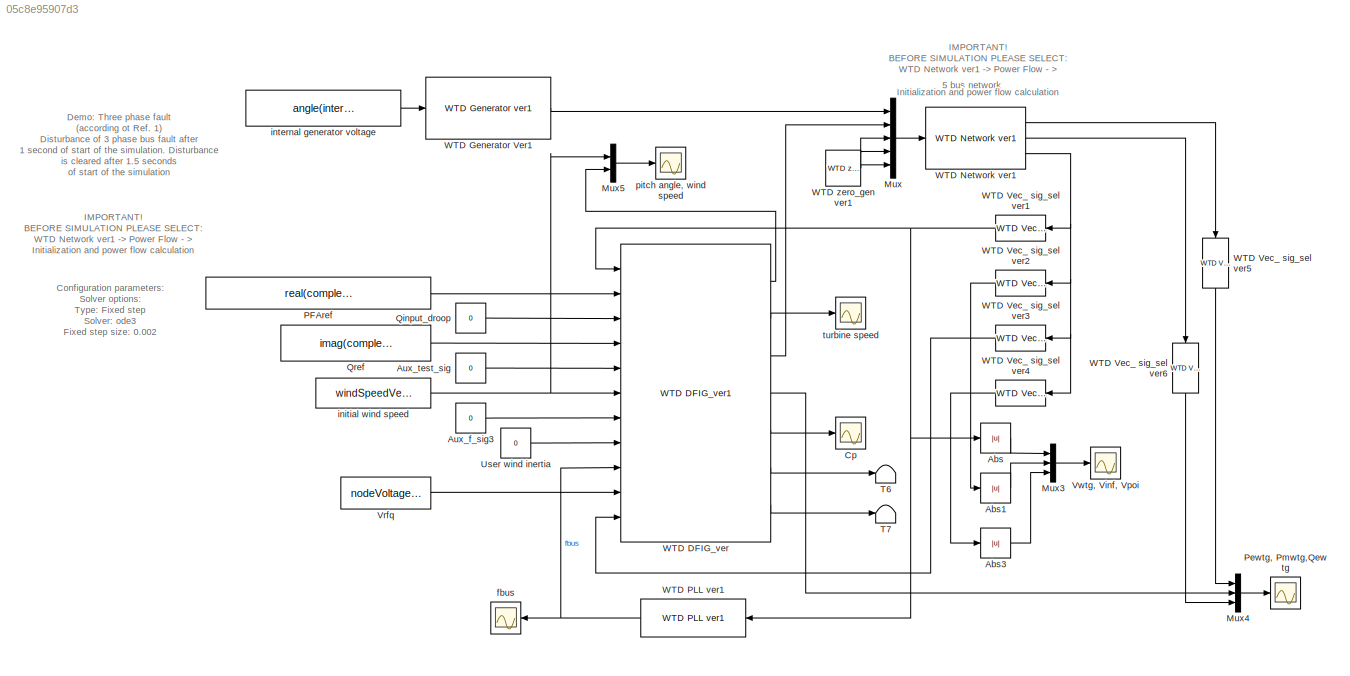
MODEL slx_05c8e95907d3
KIND model
BLOCK [Abs] Abs
  SaturateOnIntegerOverflow = off
BLOCK [Abs] Abs1
  SaturateOnIntegerOverflow = off
BLOCK [Abs] Abs3
  SaturateOnIntegerOverflow = off
BLOCK [Constant] Aux_f_sig3
  Value = 0
BLOCK [Constant] Aux_test_sig
  Value = 0
BLOCK [Scope] Cp
  DataFormat = StructureWithTime
  Floating = off
  MaxDataPoints = 500000
  NumInputPorts = 1
  Ports = [1]
  SampleTime = 0
  SaveName = ScopeData13
  ShowLegends = off
  YMax = 0.24
  YMin = 0.17
BLOCK [Mux] Mux
  DisplayOption = bar
  Inputs = 5
  Ports = [5, 1]
BLOCK [Mux] Mux3
  DisplayOption = bar
  Inputs = 3
  Ports = [3, 1]
BLOCK [Mux] Mux4
  DisplayOption = bar
  Inputs = 3
  Ports = [3, 1]
BLOCK [Mux] Mux5
  DisplayOption = bar
  Inputs = 2
  Ports = [2, 1]
BLOCK [Constant] PFAref
  Value = real(complexPower(2))/abs(complexPower(2))
BLOCK [Scope] Pewtg, Pmwtg,Qewtg
  DataFormat = StructureWithTime
  Floating = off
  MaxDataPoints = 500000
  NumInputPorts = 1
  Ports = [1]
  SampleTime = 0
  SaveName = ScopeData3
  ShowLegends = off
  YMax = 1.5
  YMin = -0.5
  ZoomMode = yonly
BLOCK [Constant] Qinput_droop
  Value = 0
BLOCK [Constant] Qref
  Value = imag(complexPower(2))
BLOCK [Terminator] T6
BLOCK [Terminator] T7
BLOCK [Constant] User wind inertia
  Value = 0
BLOCK [Constant] Vrfq
  Value = nodeVoltage(5)
BLOCK [Scope] Vwtg, Vinf, Vpoi
  DataFormat = StructureWithTime
  Floating = off
  MaxDataPoints = 50000
  NumInputPorts = 1
  Ports = [1]
  SampleTime = 0
  SaveName = ScopeData9
  ShowLegends = off
  YMax = 1.5
  YMin = 0
BLOCK [Reference] WTD DFIG_ver  REF=wtd_library_ver1/WTD DFIG_ver1  (lib defined in slx_bdb9e66360e7)
  FunctionWithSeparateData = off
  H = 4.94
  KVi = 40
  Ka = windturbKaParam
  Kb = windturbKbParam
  Kitrq = 0.6
  Kiv = 5
  Kptrq = 3
  Kpv = 18
  Kqd = 0
  Kwi = 10
  Pelec4abs = real(complexPower)*baseSystemPower
  Pmnwi = 0
  Pmxwi = 0.1
  Ports = [11, 7]
  Qgen4abs = imag(complexPower)*baseSystemPower
  Qmax = 0.436
  Qmin = -0.436
  RTWMemSecDataConstants = Inherit from model
  RTWMemSecDataInternal = Inherit from model
  RTWMemSecDataParameters = Inherit from model
  RTWMemSecFuncExecute = Inherit from model
  RTWMemSecFuncInitTerm = Inherit from model
  Sbasem4 = 100.5
  Sbasesys = baseSystemPower
  ShowPortLabels = FromPortIcon
  SourceBlock = wtd_library_ver1/WTD DFIG_ver1
  SystemSampleTime = -1
  TIpwi = 1
  Tpc = 0.05
  Twowi = 5.5
  Vwinit = nodeVoltage
  Xsecsys = genTranReactance
  apcflg = 0
  co_node = 2
  dbwi = 0.0025
  drlwi = -1
  insupp = 0
  pfaflg = 0
  theta = pitchAngleVec
  urlwi = 0.1
  varflg = 1
  w = turbSpeedVec
  wbase = 2*pi*systemFrequency
  wi_user_GE = 0
BLOCK [Reference] WTD Generator Ver1  REF=wtd_library_ver1/WTD Generator ver1  (lib defined in slx_bdb9e66360e7)
  E = internalGenVoltage
  FunctionWithSeparateData = off
  Ports = [1, 1]
  RTWMemSecDataConstants = Inherit from model
  RTWMemSecDataInternal = Inherit from model
  RTWMemSecDataParameters = Inherit from model
  RTWMemSecFuncExecute = Inherit from model
  RTWMemSecFuncInitTerm = Inherit from model
  ShowPortLabels = FromPortIcon
  SourceBlock = wtd_library_ver1/WTD Generator ver1
  SystemSampleTime = -1
  co_node = 1
  jxd = genTranReactance
BLOCK [Reference] WTD Network ver1  REF=wtd_library_ver1/WTD Network ver1  (lib defined in slx_bdb9e66360e7)
  FunctionWithSeparateData = off
  Ka = 0.00159
  Kb = 56.6
  Pbasemw = 100.5
  Ports = [1, 3]
  RTWMemSecDataConstants = Inherit from model
  RTWMemSecDataInternal = Inherit from model
  RTWMemSecDataParameters = Inherit from model
  RTWMemSecFuncExecute = Inherit from model
  RTWMemSecFuncInitTerm = Inherit from model
  Saddabs = 10
  Sbasesys = 100
  Sgenabs_co = [103,0,85]
  Sgenabs_wi = 60
  ShowPortLabels = FromPortIcon
  Sloadabs = []
  SourceBlock = wtd_library_ver1/WTD Network ver1
  SystemSampleTime = -1
  Tclear = 1.5
  Tfault = 1
  Y2df = WTD_Y5_2
  Ydf = WTD_Y5
  absV_co = 1.05
  absV_wi = 1.031
  fltimp = 0.105
  flttype = Short_circuit
  fsystem = 60
  linenumber = 1
  no_gen_co = 1
  no_gen_wi = 1
  nodeadd = 5
  nodes_co = [1]
  nodes_lo = []
  nodes_wi = 2
  pfcalc = off
  pffault = on
  vw_vector = 14
  wi_choice = Wind_speed
  xd_co = [0.01]
  xd_wi = 0.8
BLOCK [Reference] WTD PLL ver1  REF=wtd_library_ver1/WTD PLL ver1  (lib defined in slx_bdb9e66360e7)
  FunctionWithSeparateData = off
  KiPLL = 0
  KpPLL = 30
  Ports = [1, 1]
  RTWMemSecDataConstants = Inherit from model
  RTWMemSecDataInternal = Inherit from model
  RTWMemSecDataParameters = Inherit from model
  RTWMemSecFuncExecute = Inherit from model
  RTWMemSecFuncInitTerm = Inherit from model
  ShowPortLabels = FromPortIcon
  SourceBlock = wtd_library_ver1/WTD PLL ver1
  SystemSampleTime = -1
  delta_init_vec = angle(nodeVoltage )
  me_node = 2
  wbase = 2*pi*systemFrequency
BLOCK [Reference] WTD Vec_ sig_sel ver1  REF=wtd_library_ver1/WTD Vec_ sig_sel ver1  (lib defined in slx_bdb9e66360e7)
  FunctionWithSeparateData = off
  Ports = [1, 1]
  RTWMemSecDataConstants = Inherit from model
  RTWMemSecDataInternal = Inherit from model
  RTWMemSecDataParameters = Inherit from model
  RTWMemSecFuncExecute = Inherit from model
  RTWMemSecFuncInitTerm = Inherit from model
  ShowPortLabels = FromPortIcon
  SourceBlock = wtd_library_ver1/WTD Vec_ sig_sel ver1
  SystemSampleTime = -1
  node = 2
BLOCK [Reference] WTD Vec_ sig_sel ver2  REF=wtd_library_ver1/WTD Vec_ sig_sel ver1  (lib defined in slx_bdb9e66360e7)
  FunctionWithSeparateData = off
  Ports = [1, 1]
  RTWMemSecDataConstants = Inherit from model
  RTWMemSecDataInternal = Inherit from model
  RTWMemSecDataParameters = Inherit from model
  RTWMemSecFuncExecute = Inherit from model
  RTWMemSecFuncInitTerm = Inherit from model
  ShowPortLabels = FromPortIcon
  SourceBlock = wtd_library_ver1/WTD Vec_ sig_sel ver1
  SystemSampleTime = -1
  node = 1
BLOCK [Reference] WTD Vec_ sig_sel ver3  REF=wtd_library_ver1/WTD Vec_ sig_sel ver1  (lib defined in slx_bdb9e66360e7)
  FunctionWithSeparateData = off
  Ports = [1, 1]
  RTWMemSecDataConstants = Inherit from model
  RTWMemSecDataInternal = Inherit from model
  RTWMemSecDataParameters = Inherit from model
  RTWMemSecFuncExecute = Inherit from model
  RTWMemSecFuncInitTerm = Inherit from model
  ShowPortLabels = FromPortIcon
  SourceBlock = wtd_library_ver1/WTD Vec_ sig_sel ver1
  SystemSampleTime = -1
  node = 5
BLOCK [Reference] WTD Vec_ sig_sel ver4  REF=wtd_library_ver1/WTD Vec_ sig_sel ver1  (lib defined in slx_bdb9e66360e7)
  FunctionWithSeparateData = off
  Ports = [1, 1]
  RTWMemSecDataConstants = Inherit from model
  RTWMemSecDataInternal = Inherit from model
  RTWMemSecDataParameters = Inherit from model
  RTWMemSecFuncExecute = Inherit from model
  RTWMemSecFuncInitTerm = Inherit from model
  ShowPortLabels = FromPortIcon
  SourceBlock = wtd_library_ver1/WTD Vec_ sig_sel ver1
  SystemSampleTime = -1
  node = 5
BLOCK [Reference] WTD Vec_ sig_sel ver5  REF=wtd_library_ver1/WTD Vec_ sig_sel ver1  (lib defined in slx_bdb9e66360e7)
  FunctionWithSeparateData = off
  Ports = [1, 1]
  RTWMemSecDataConstants = Inherit from model
  RTWMemSecDataInternal = Inherit from model
  RTWMemSecDataParameters = Inherit from model
  RTWMemSecFuncExecute = Inherit from model
  RTWMemSecFuncInitTerm = Inherit from model
  ShowPortLabels = FromPortIcon
  SourceBlock = wtd_library_ver1/WTD Vec_ sig_sel ver1
  SystemSampleTime = -1
  node = 2
BLOCK [Reference] WTD Vec_ sig_sel ver6  REF=wtd_library_ver1/WTD Vec_ sig_sel ver1  (lib defined in slx_bdb9e66360e7)
  FunctionWithSeparateData = off
  Ports = [1, 1]
  RTWMemSecDataConstants = Inherit from model
  RTWMemSecDataInternal = Inherit from model
  RTWMemSecDataParameters = Inherit from model
  RTWMemSecFuncExecute = Inherit from model
  RTWMemSecFuncInitTerm = Inherit from model
  ShowPortLabels = FromPortIcon
  SourceBlock = wtd_library_ver1/WTD Vec_ sig_sel ver1
  SystemSampleTime = -1
  node = 2
BLOCK [Reference] WTD zero_gen ver1  REF=wtd_library_ver1/WTD zero_gen ver1  (lib defined in slx_bdb9e66360e7)
  FunctionWithSeparateData = off
  Ports = [0, 1]
  RTWMemSecDataConstants = Inherit from model
  RTWMemSecDataInternal = Inherit from model
  RTWMemSecDataParameters = Inherit from model
  RTWMemSecFuncExecute = Inherit from model
  RTWMemSecFuncInitTerm = Inherit from model
  ShowPortLabels = FromPortIcon
  SourceBlock = wtd_library_ver1/WTD zero_gen ver1
  SystemSampleTime = -1
BLOCK [Scope] fbus
  DataFormat = StructureWithTime
  Floating = off
  MaxDataPoints = 50000
  NumInputPorts = 1
  Ports = [1]
  SampleTime = 0
  SaveName = ScopeData4
  ShowLegends = off
  YMax = 1.00007
  YMin = 0.999775
BLOCK [Constant] initial wind speed
  Value = windSpeedVec(2)
BLOCK [Constant] internal generator voltage
  Value = angle(internalGenVoltage(1))
BLOCK [Scope] pitch angle, wind speed
  DataFormat = StructureWithTime
  Floating = off
  MaxDataPoints = 500000
  NumInputPorts = 1
  Ports = [1]
  SampleTime = 0
  SaveName = ScopeData5
  ShowLegends = off
  YMax = 20
  YMin = 0
BLOCK [Scope] turbine speed
  DataFormat = StructureWithTime
  Floating = off
  MaxDataPoints = 500000
  NumInputPorts = 1
  Ports = [1]
  SampleTime = 0
  SaveName = ScopeData8
  ShowLegends = off
  YMax = 1.3
  YMin = 1
ANNOTATION (root): 5 bus network
ANNOTATION (root): Configuration parameters: Solver options: Type: Fixed step Solver: ode3 Fixed step size: 0.002
ANNOTATION (root): Demo: Three phase fault (according ot Ref. 1) Disturbance of 3 phase bus fault after 1 second of start of the simulation. Disturbance is cleared after 1.5 seconds of start of the simulation Vwtg node is node number 2 Vpoi node is node number 5 Vinf node is node 1
ANNOTATION (root): IMPORTANT! BEFORE SIMULATION PLEASE SELECT: WTD Network ver1 -> Power Flow - > Initialization and power flow calculation
LINE Abs1:1 -> Mux3:2
LINE Abs3:1 -> Mux3:3
LINE Abs:1 -> Mux3:1
LINE Aux_f_sig3:1 -> WTD DFIG_ver:7
LINE Aux_test_sig:1 -> WTD DFIG_ver:5
LINE Mux3:1 -> Vwtg, Vinf, Vpoi:1
LINE Mux4:1 -> Pewtg, Pmwtg,Qewtg:1
LINE Mux5:1 -> pitch angle, wind speed:1
LINE Mux:1 -> WTD Network ver1:1
LINE PFAref:1 -> WTD DFIG_ver:2
LINE Qinput_droop:1 -> WTD DFIG_ver:3
LINE Qref:1 -> WTD DFIG_ver:4
LINE User wind inertia:1 -> WTD DFIG_ver:8
LINE Vrfq:1 -> WTD DFIG_ver:10
LINE WTD DFIG_ver:1 -> Mux5:2
LINE WTD DFIG_ver:2 -> turbine speed:1
LINE WTD DFIG_ver:3 -> Mux:2
LINE WTD DFIG_ver:4 -> Mux4:2
LINE WTD DFIG_ver:5 -> Cp:1
LINE WTD DFIG_ver:6 -> T6:1
LINE WTD DFIG_ver:7 -> T7:1
LINE WTD Generator Ver1:1 -> Mux:1
LINE WTD Network ver1:1 -> WTD Vec_ sig_sel ver5:1
LINE WTD Network ver1:2 -> WTD Vec_ sig_sel ver6:1
NET WTD Network ver1:3 -> WTD Vec_ sig_sel ver1:1, WTD Vec_ sig_sel ver2:1, WTD Vec_ sig_sel ver3:1, WTD Vec_ sig_sel ver4:1
NET WTD PLL ver1:1 -> WTD DFIG_ver:9, fbus:1
NET WTD Vec_ sig_sel ver1:1 -> Abs:1, WTD DFIG_ver:1, WTD PLL ver1:1
LINE WTD Vec_ sig_sel ver2:1 -> Abs1:1
LINE WTD Vec_ sig_sel ver3:1 -> WTD DFIG_ver:11
LINE WTD Vec_ sig_sel ver4:1 -> Abs3:1
LINE WTD Vec_ sig_sel ver5:1 -> Mux4:1
LINE WTD Vec_ sig_sel ver6:1 -> Mux4:3
NET WTD zero_gen ver1:1 -> Mux:3, Mux:4, Mux:5
NET initial wind speed:1 -> Mux5:1, WTD DFIG_ver:6
LINE internal generator voltage:1 -> WTD Generator Ver1:1
note: NET lines group one-source signal fan-out (src -> all destinations, sorted); 1:1 wires keep LINE
